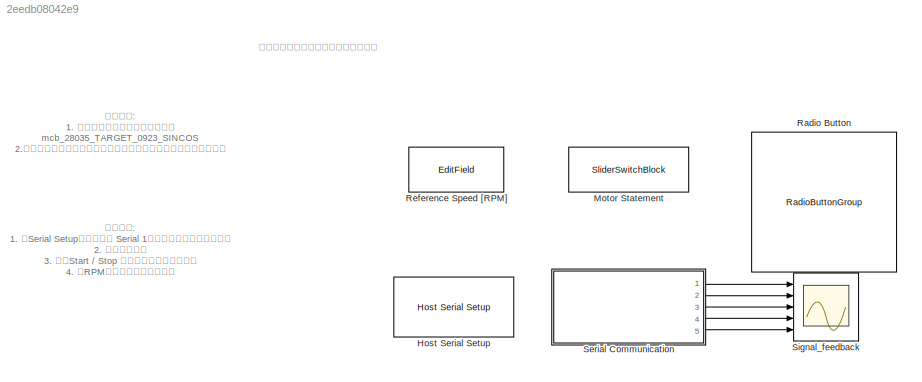
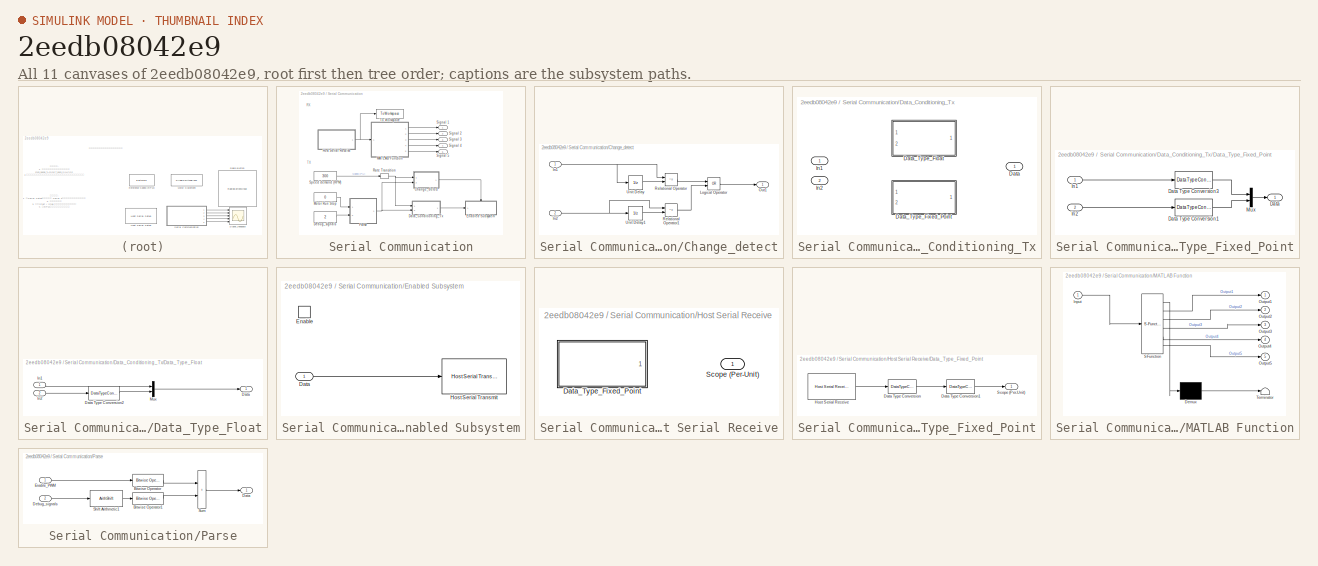
[diagram: thumbnail index - all 11 canvases of the model, root first then tree order]
MODEL slx_2eedb08042e9
KIND model
CONFIG AbsTol = auto
CONFIG EnableMultiTasking = on
CONFIG FixedStep = auto
CONFIG InitFcn = mcb_28035_parameters;\n
CONFIG MaxStep = auto
CONFIG MinStep = auto
CONFIG RelTol = 1e-3
CONFIG SampleTimeConstraint = Unconstrained
CONFIG SolverName = FixedStepAuto
CONFIG StartTime = 0.0
CONFIG StopTime = inf
BLOCK [Reference] Host Serial Setup  REF=mcbhostblockslib/Host Serial Setup
  Ports = []
  Priority = -99
  SourceBlock = mcbhostblockslib/Host Serial Setup
  SourceProductBaseCode = MT
  SourceType = Host Serial Setup
BLOCK [SliderSwitchBlock] Motor Statement
  LabelPosition = Hide
BLOCK [RadioButtonGroup] Radio Button
  ButtonGroupName = Scope signals
  LabelPosition = Hide
  SelectedLabel = Current_Pos
BLOCK [EditField] Reference Speed [RPM]
  Alignment = Center
  LabelPosition = Hide
  ShowInitialText = on
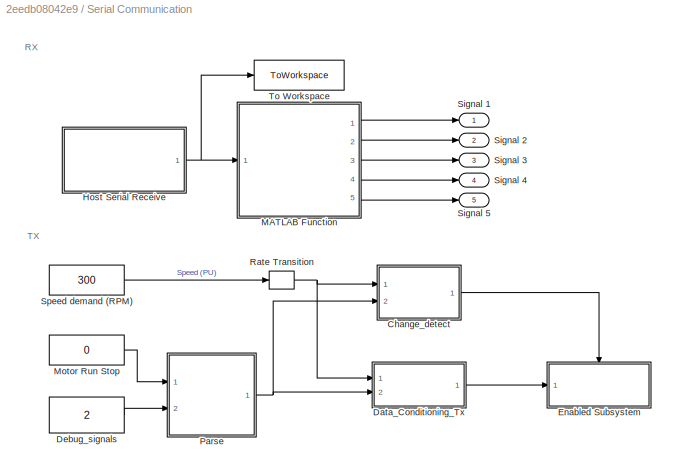
BLOCK [SubSystem] Serial Communication
  Ports = [0, 5]
  RequestExecContextInheritance = off
BLOCK [SubSystem] Serial Communication/Change_detect
  Ports = [2, 1]
  RequestExecContextInheritance = off
BLOCK [Inport] Serial Communication/Change_detect/In1
BLOCK [Inport] Serial Communication/Change_detect/In2
  Port = 2
BLOCK [Logic] Serial Communication/Change_detect/Logical Operator
  AllPortsSameDT = off
  Operator = OR
  OutDataTypeStr = boolean
  Ports = [2, 1]
BLOCK [Outport] Serial Communication/Change_detect/Out1
  VectorParamsAs1DForOutWhenUnconnected = off
BLOCK [RelationalOperator] Serial Communication/Change_detect/Relational Operator
  InputSameDT = off
  Operator = ~=
  OutDataTypeStr = boolean
  Ports = [2, 1]
BLOCK [RelationalOperator] Serial Communication/Change_detect/Relational Operator1
  InputSameDT = off
  Operator = ~=
  OutDataTypeStr = boolean
  Ports = [2, 1]
BLOCK [UnitDelay] Serial Communication/Change_detect/Unit Delay
  HasFrameUpgradeWarning = on
  InitialCondition = 0.5
  SampleTime = -1
BLOCK [UnitDelay] Serial Communication/Change_detect/Unit Delay1
  HasFrameUpgradeWarning = on
  SampleTime = -1
BLOCK [SubSystem] Serial Communication/Data_Conditioning_Tx
  Ports = [2, 1]
  RequestExecContextInheritance = off
  Variant = on
BLOCK [Outport] Serial Communication/Data_Conditioning_Tx/Data
BLOCK [SubSystem] Serial Communication/Data_Conditioning_Tx/Data_Type_Fixed_Point
  Ports = [2, 1]
  RequestExecContextInheritance = off
  VariantControl = ~isequal(dataType, 'single')
BLOCK [Outport] Serial Communication/Data_Conditioning_Tx/Data_Type_Fixed_Point/Data
BLOCK [DataTypeConversion] Serial Communication/Data_Conditioning_Tx/Data_Type_Fixed_Point/Data Type Conversion1
  OutDataTypeStr = uint32
  RndMeth = Simplest
  SaturateOnIntegerOverflow = off
BLOCK [DataTypeConversion] Serial Communication/Data_Conditioning_Tx/Data_Type_Fixed_Point/Data Type Conversion3
  ConvertRealWorld = Stored Integer (SI)
  NameLocation = left
  OutDataTypeStr = uint32
  RndMeth = Simplest
  SaturateOnIntegerOverflow = off
BLOCK [Inport] Serial Communication/Data_Conditioning_Tx/Data_Type_Fixed_Point/In1
BLOCK [Inport] Serial Communication/Data_Conditioning_Tx/Data_Type_Fixed_Point/In2
  Port = 2
BLOCK [Mux] Serial Communication/Data_Conditioning_Tx/Data_Type_Fixed_Point/Mux
  DisplayOption = bar
  Inputs = 2
  Ports = [2, 1]
BLOCK [SubSystem] Serial Communication/Data_Conditioning_Tx/Data_Type_Float
  Ports = [2, 1]
  RequestExecContextInheritance = off
  VariantControl = isequal(dataType, 'single')
BLOCK [Outport] Serial Communication/Data_Conditioning_Tx/Data_Type_Float/Data
BLOCK [DataTypeConversion] Serial Communication/Data_Conditioning_Tx/Data_Type_Float/Data Type Conversion2
  OutDataTypeStr = single
  RndMeth = Simplest
  SaturateOnIntegerOverflow = off
BLOCK [Inport] Serial Communication/Data_Conditioning_Tx/Data_Type_Float/In1
BLOCK [Inport] Serial Communication/Data_Conditioning_Tx/Data_Type_Float/In2
  Port = 2
BLOCK [Mux] Serial Communication/Data_Conditioning_Tx/Data_Type_Float/Mux
  DisplayOption = bar
  Inputs = 2
  Ports = [2, 1]
BLOCK [Inport] Serial Communication/Data_Conditioning_Tx/In1
BLOCK [Inport] Serial Communication/Data_Conditioning_Tx/In2
  Port = 2
BLOCK [Constant] Serial Communication/Debug_signals
  OutDataTypeStr = uint16
  SampleTime = 0.03
  Value = 2
BLOCK [SubSystem] Serial Communication/Enabled Subsystem
  Ports = [1, 0, 1]
  RequestExecContextInheritance = off
  TreatAsAtomicUnit = on
BLOCK [Inport] Serial Communication/Enabled Subsystem/Data
BLOCK [EnablePort] Serial Communication/Enabled Subsystem/Enable
  Ports = []
BLOCK [Reference] Serial Communication/Enabled Subsystem/Host Serial Transmit  REF=mcbhostblockslib/Host Serial Transmit
  Ports = [1]
  SourceBlock = mcbhostblockslib/Host Serial Transmit
  SourceProductBaseCode = MT
  SourceType = Host Serial Transmit
BLOCK [SubSystem] Serial Communication/Host Serial Receive
  Ports = [0, 1]
  RequestExecContextInheritance = off
  Variant = on
BLOCK [SubSystem] Serial Communication/Host Serial Receive/Data_Type_Fixed_Point
  Ports = [0, 1]
  RequestExecContextInheritance = off
  VariantControl = ~isequal(dataType, 'single')
BLOCK [DataTypeConversion] Serial Communication/Host Serial Receive/Data_Type_Fixed_Point/Data Type Conversion
  ConvertRealWorld = Stored Integer (SI)
  OutDataTypeStr = fixdt(1,32,15)
  RndMeth = Simplest
  SaturateOnIntegerOverflow = off
BLOCK [DataTypeConversion] Serial Communication/Host Serial Receive/Data_Type_Fixed_Point/Data Type Conversion1
  OutDataTypeStr = single
  RndMeth = Simplest
  SaturateOnIntegerOverflow = off
BLOCK [Reference] Serial Communication/Host Serial Receive/Data_Type_Fixed_Point/Host Serial Receive  REF=mcbhostblockslib/Host Serial Receive
  Ports = [0, 1]
  SourceBlock = mcbhostblockslib/Host Serial Receive
  SourceProductBaseCode = MT
  SourceType = Host Serial Receive
BLOCK [Outport] Serial Communication/Host Serial Receive/Data_Type_Fixed_Point/Scope (Per-Unit)
BLOCK [Outport] Serial Communication/Host Serial Receive/Scope (Per-Unit)
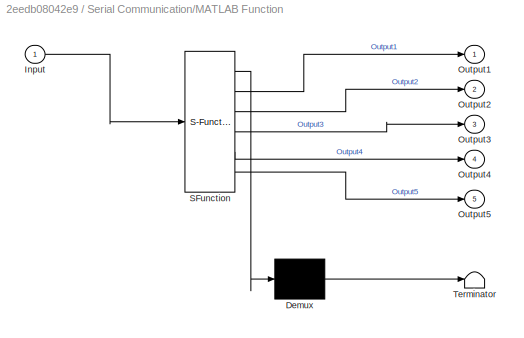
BLOCK [SubSystem] Serial Communication/MATLAB Function
  ErrorFcn = Stateflow.Translate.translate
  PermitHierarchicalResolution = ExplicitOnly
  Ports = [1, 5]
  RequestExecContextInheritance = off
  SFBlockType = MATLAB Function
  TreatAsAtomicUnit = on
BLOCK [Demux] Serial Communication/MATLAB Function/ Demux 
  Outputs = 1
  Ports = [1, 1]
BLOCK [S-Function] Serial Communication/MATLAB Function/ SFunction 
  EnableBusSupport = on
  FunctionName = sf_sfun
  PortCounts = [1 6]
  Ports = [1, 6]
  SFcnIsStateOwnerBlock = off
  SFunctionDeploymentMode = off
  Tag = Stateflow S-Function 3
BLOCK [Terminator] Serial Communication/MATLAB Function/ Terminator 
BLOCK [Inport] Serial Communication/MATLAB Function/Input
BLOCK [Outport] Serial Communication/MATLAB Function/Output1
BLOCK [Outport] Serial Communication/MATLAB Function/Output2
  Port = 2
BLOCK [Outport] Serial Communication/MATLAB Function/Output3
  Port = 3
BLOCK [Outport] Serial Communication/MATLAB Function/Output4
  Port = 4
BLOCK [Outport] Serial Communication/MATLAB Function/Output5
  Port = 5
BLOCK [Constant] Serial Communication/Motor Run Stop
  OutDataTypeStr = uint16
  SampleTime = 0.03
  Value = 0
  VectorParams1D = off
BLOCK [SubSystem] Serial Communication/Parse
  Ports = [2, 1]
  RequestExecContextInheritance = off
BLOCK [Reference] Serial Communication/Parse/Bitwise Operator  REF=simulink/Logic and Bit
Operations/Bitwise
Operator
  Ports = [1, 1]
  SourceBlock = simulink/Logic and Bit\nOperations/Bitwise\nOperator
  SourceProductBaseCode = SL
  SourceType = Bitwise Operator
BLOCK [Reference] Serial Communication/Parse/Bitwise Operator1  REF=simulink/Logic and Bit
Operations/Bitwise
Operator
  Ports = [1, 1]
  SourceBlock = simulink/Logic and Bit\nOperations/Bitwise\nOperator
  SourceProductBaseCode = SL
  SourceType = Bitwise Operator
BLOCK [Outport] Serial Communication/Parse/Data
BLOCK [Inport] Serial Communication/Parse/Debug_signals
  Port = 2
BLOCK [Inport] Serial Communication/Parse/Enable_PWM
BLOCK [ArithShift] Serial Communication/Parse/Shift Arithmetic1
  BitShiftNumber = -4
  InputPortMap = u0
  Ports = [1, 1]
BLOCK [Sum] Serial Communication/Parse/Sum
  IconShape = rectangular
  Ports = [2, 1]
BLOCK [RateTransition] Serial Communication/Rate Transition
  OutPortSampleTime = 0.03
BLOCK [Outport] Serial Communication/Signal 1
BLOCK [Outport] Serial Communication/Signal 2
  Port = 2
BLOCK [Outport] Serial Communication/Signal 3
  Port = 3
BLOCK [Outport] Serial Communication/Signal 4
  Port = 4
BLOCK [Outport] Serial Communication/Signal 5
  Port = 5
BLOCK [Constant] Serial Communication/Speed demand (RPM)
  OutDataTypeStr = single
  SampleTime = 0.03
  Value = 300
  VectorParams1D = off
BLOCK [ToWorkspace] Serial Communication/To Workspace
  FixptAsFi = on
  MaxDataPoints = inf
  Ports = [1]
  SampleTime = -1
  Save2DSignal = 2-D array (concatenate along first dimension)
  VariableName = DataLogging
BLOCK [Scope] Signal_feedback
  DefaultConfigurationName = spbscopes.TimeScopeBlockCfg
  Floating = off
  NumInputPorts = 5
  Ports = [5]
  ScopeSpecificationString = spbscopes.TimeScopeBlockCfg('CurrentConfiguration', extmgr.ConfigurationSet(extmgr.Configuration('Core','General UI',true),extmgr.Configuration('Core','Source UI',true),extmgr.Configuration('Sources','WiredSimulink',true,'PointsPerSignal',1000000,'DataLogging',true,'DataLoggingVariableName','data_Logging'),extmgr.Configuration('Visuals','Time Domain',true,'DisplayLayoutDimensions',[5 1],'DisplayPr...<+4581ch>
  UserDataPersistent = on
ANNOTATION (root): 准备工作: 1. 请先将下位机程序写入单片机； mcb_28035_TARGET_0923_SINCOS 2.请确保包含本模型运行所需参数的脚本文件在当前运行文件夹中。
ANNOTATION (root): 操作步骤: 1. 在Serial Setup模块中选择 Serial 1选项卡并选择正确端口号； 2. 运行该模型； 3. 使用Start / Stop 开关来对电机进行控制； 4. 以RPM为单位键入参考转速。
ANNOTATION (root): 无刷直流电机矢量控制演示装置上位机
ANNOTATION Serial Communication: RX
ANNOTATION Serial Communication: TX
NET Serial Communication/Change_detect/In1:1 -> Serial Communication/Change_detect/Relational Operator:1, Serial Communication/Change_detect/Unit Delay:1
NET Serial Communication/Change_detect/In2:1 -> Serial Communication/Change_detect/Relational Operator1:1, Serial Communication/Change_detect/Unit Delay1:1
LINE Serial Communication/Change_detect/Logical Operator:1 -> Serial Communication/Change_detect/Out1:1
LINE Serial Communication/Change_detect/Relational Operator1:1 -> Serial Communication/Change_detect/Logical Operator:2
LINE Serial Communication/Change_detect/Relational Operator:1 -> Serial Communication/Change_detect/Logical Operator:1
LINE Serial Communication/Change_detect/Unit Delay1:1 -> Serial Communication/Change_detect/Relational Operator1:2
LINE Serial Communication/Change_detect/Unit Delay:1 -> Serial Communication/Change_detect/Relational Operator:2
LINE Serial Communication/Change_detect:1 -> Serial Communication/Enabled Subsystem:enable
LINE Serial Communication/Data_Conditioning_Tx/Data_Type_Fixed_Point/Data Type Conversion1:1 -> Serial Communication/Data_Conditioning_Tx/Data_Type_Fixed_Point/Mux:2
LINE Serial Communication/Data_Conditioning_Tx/Data_Type_Fixed_Point/Data Type Conversion3:1 -> Serial Communication/Data_Conditioning_Tx/Data_Type_Fixed_Point/Mux:1
LINE Serial Communication/Data_Conditioning_Tx/Data_Type_Fixed_Point/In1:1 -> Serial Communication/Data_Conditioning_Tx/Data_Type_Fixed_Point/Data Type Conversion3:1
LINE Serial Communication/Data_Conditioning_Tx/Data_Type_Fixed_Point/In2:1 -> Serial Communication/Data_Conditioning_Tx/Data_Type_Fixed_Point/Data Type Conversion1:1
LINE Serial Communication/Data_Conditioning_Tx/Data_Type_Fixed_Point/Mux:1 -> Serial Communication/Data_Conditioning_Tx/Data_Type_Fixed_Point/Data:1
LINE Serial Communication/Data_Conditioning_Tx/Data_Type_Float/Data Type Conversion2:1 -> Serial Communication/Data_Conditioning_Tx/Data_Type_Float/Mux:2
LINE Serial Communication/Data_Conditioning_Tx/Data_Type_Float/In1:1 -> Serial Communication/Data_Conditioning_Tx/Data_Type_Float/Mux:1
LINE Serial Communication/Data_Conditioning_Tx/Data_Type_Float/In2:1 -> Serial Communication/Data_Conditioning_Tx/Data_Type_Float/Data Type Conversion2:1
LINE Serial Communication/Data_Conditioning_Tx/Data_Type_Float/Mux:1 -> Serial Communication/Data_Conditioning_Tx/Data_Type_Float/Data:1
LINE Serial Communication/Data_Conditioning_Tx:1 -> Serial Communication/Enabled Subsystem:1
LINE Serial Communication/Debug_signals:1 -> Serial Communication/Parse:2
LINE Serial Communication/Enabled Subsystem/Data:1 -> Serial Communication/Enabled Subsystem/Host Serial Transmit:1
LINE Serial Communication/Host Serial Receive/Data_Type_Fixed_Point/Data Type Conversion1:1 -> Serial Communication/Host Serial Receive/Data_Type_Fixed_Point/Scope (Per-Unit):1
LINE Serial Communication/Host Serial Receive/Data_Type_Fixed_Point/Data Type Conversion:1 -> Serial Communication/Host Serial Receive/Data_Type_Fixed_Point/Data Type Conversion1:1
LINE Serial Communication/Host Serial Receive/Data_Type_Fixed_Point/Host Serial Receive:1 -> Serial Communication/Host Serial Receive/Data_Type_Fixed_Point/Data Type Conversion:1
NET Serial Communication/Host Serial Receive:1 -> Serial Communication/MATLAB Function:1, Serial Communication/To Workspace:1
LINE Serial Communication/MATLAB Function:1 -> Serial Communication/Signal 1:1
LINE Serial Communication/MATLAB Function:2 -> Serial Communication/Signal 2:1
LINE Serial Communication/MATLAB Function:3 -> Serial Communication/Signal 3:1
LINE Serial Communication/MATLAB Function:4 -> Serial Communication/Signal 4:1
LINE Serial Communication/MATLAB Function:5 -> Serial Communication/Signal 5:1
LINE Serial Communication/Motor Run Stop:1 -> Serial Communication/Parse:1
LINE Serial Communication/Parse/Bitwise Operator1:1 -> Serial Communication/Parse/Sum:2
LINE Serial Communication/Parse/Bitwise Operator:1 -> Serial Communication/Parse/Sum:1
LINE Serial Communication/Parse/Debug_signals:1 -> Serial Communication/Parse/Shift Arithmetic1:1
LINE Serial Communication/Parse/Enable_PWM:1 -> Serial Communication/Parse/Bitwise Operator:1
LINE Serial Communication/Parse/Shift Arithmetic1:1 -> Serial Communication/Parse/Bitwise Operator1:1
LINE Serial Communication/Parse/Sum:1 -> Serial Communication/Parse/Data:1
NET Serial Communication/Parse:1 -> Serial Communication/Change_detect:2, Serial Communication/Data_Conditioning_Tx:2
NET Serial Communication/Rate Transition:1 -> Serial Communication/Change_detect:1, Serial Communication/Data_Conditioning_Tx:1
LINE Serial Communication/Speed demand (RPM):1 -> Serial Communication/Rate Transition:1
LINE Serial Communication:1 -> Signal_feedback:1
LINE Serial Communication:2 -> Signal_feedback:2
LINE Serial Communication:3 -> Signal_feedback:3
LINE Serial Communication:4 -> Signal_feedback:4
LINE Serial Communication:5 -> Signal_feedback:5
note: NET lines group one-source signal fan-out (src -> all destinations, sorted); 1:1 wires keep LINE
CHART Serial Communication/MATLAB Function states=1 transitions=1
  STATE_LABEL 'eML_blk_kernel()'
  STATE_LABEL 'SCRIPT:\nfunction [ Output1, Output2, Output3, Output4, Output5] = unBuf(Input)\n\nOutput1 = Input(:, 1);\nOutput2 = Input(:, 2);\nOutput3 = Input(:, 3);\nOutput4 = Input(:, 4);\nOutput5 = Input(:, 5);\nend'
CHART  states=0 transitions=0
